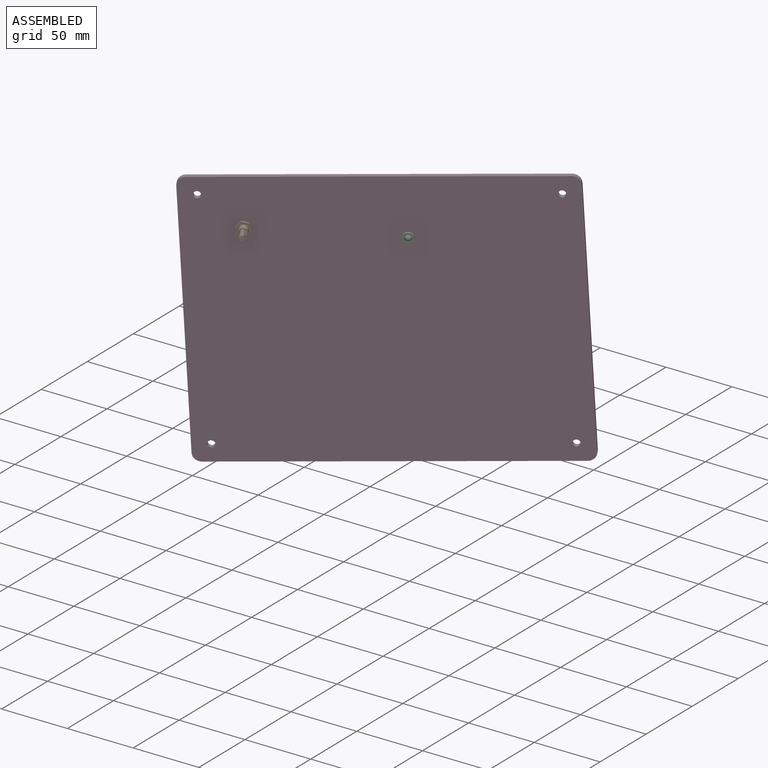
[diagram: assembled view]
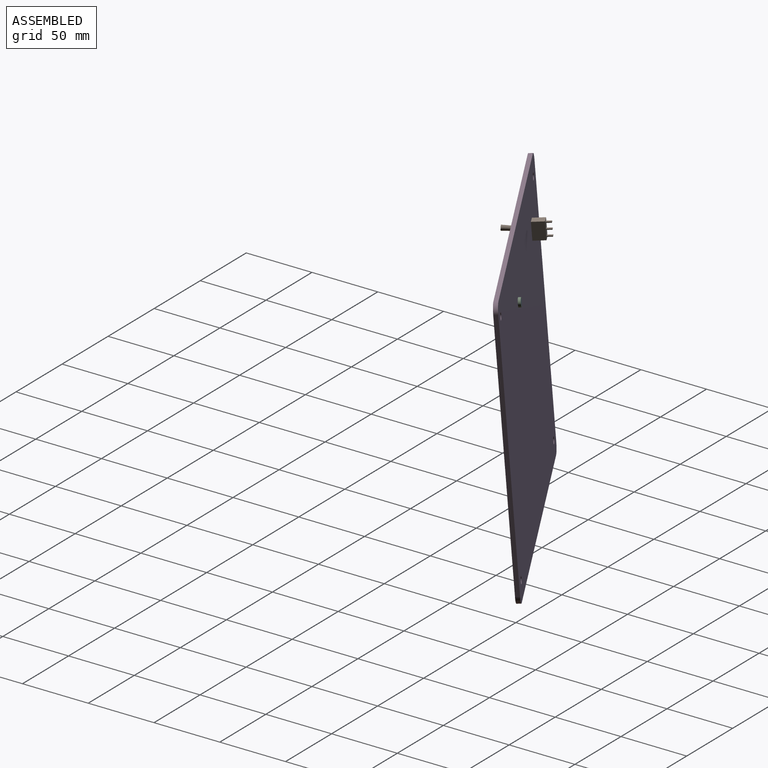
[diagram: assembled view, second angle]
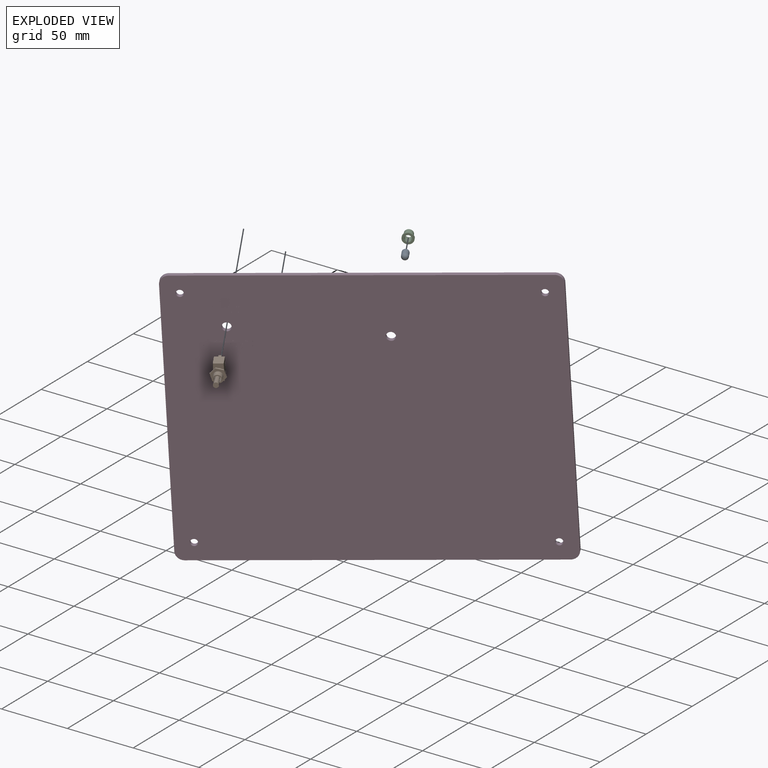
[diagram: exploded view]
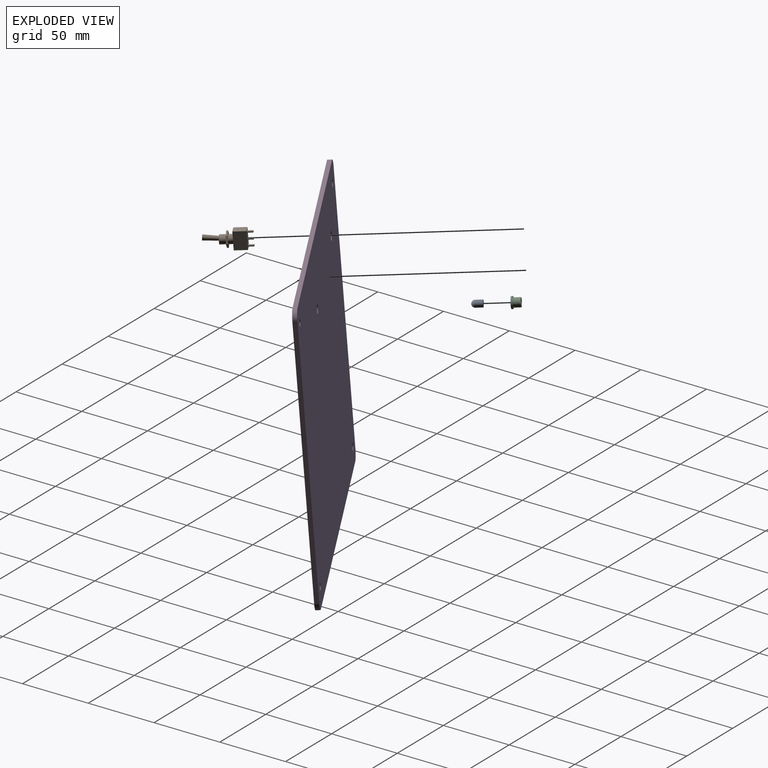
[diagram: exploded view, second angle]
ASSEMBLY  parts=4 mates=3
PART A: 3 faces, bbox 5x5x7.6 mm
  f0: sphere r=2.5mm, area 39.3mm2, adj f1
  f1: cylinder r=2.5mm len=5.08mm, axis (0,0,1), area 79.8mm2, adj f0,f2
  f2: plane 5x5mm, normal (0,0,-1), area 19.6mm2, adj f1
PART B: 37 faces, bbox 12.7x10.7x32.5 mm
  f0: cylinder r=3.17mm len=6.35mm, axis (0,0,-1), area 63.3mm2, adj f2,f29
  f1: plane 12.7x6.86mm, normal (0,0,-1), area 82.5mm2, adj f3,f4,f5,f6,f7,f8,f9,f10
  f2: plane 12.7x6.86mm, normal (0,0,1), area 55.4mm2, adj f0,f3,f4,f5,f6
  f3: plane 12.7x8.89mm, normal (0,1,0), area 112.9mm2, adj f1,f2,f4,f6
  f4: plane 8.89x6.86mm, normal (-1,0,0), area 61mm2, adj f1,f2,f3,f5
  f5: plane 12.7x8.89mm, normal (0,-1,0), area 112.9mm2, adj f1,f2,f4,f6
  f6: plane 8.89x6.86mm, normal (1,0,0), area 61mm2, adj f1,f2,f3,f5
  f7: plane 3.94x0.76mm, normal (0,1,0), area 3mm2, adj f1,f8,f10,f11
  f8: plane 3.94x2.03mm, normal (1,0,0), area 8mm2, adj f1,f7,f9,f11
  f9: plane 3.94x0.76mm, normal (0,-1,0), area 3mm2, adj f1,f8,f10,f11
  f10: plane 3.94x2.03mm, normal (-1,0,0), area 8mm2, adj f1,f7,f9,f11
  f11: plane 2.03x0.76mm, normal (0,0,-1), area 1.5mm2, adj f7,f8,f9,f10
  f12: plane 3.94x2.03mm, normal (1,0,0), area 8mm2, adj f1,f13,f15,f16
  f13: plane 3.94x0.76mm, normal (0,-1,0), area 3mm2, adj f1,f12,f14,f16
  f14: plane 3.94x2.03mm, normal (-1,0,0), area 8mm2, adj f1,f13,f15,f16
  f15: plane 3.94x0.76mm, normal (0,1,0), area 3mm2, adj f1,f12,f14,f16
  f16: plane 2.03x0.76mm, normal (0,0,-1), area 1.5mm2, adj f12,f13,f14,f15
  f17: plane 3.94x2.03mm, normal (1,0,0), area 8mm2, adj f1,f18,f20,f21
  f18: plane 3.94x0.76mm, normal (0,-1,0), area 3mm2, adj f1,f17,f19,f21
  f19: plane 3.94x2.03mm, normal (-1,0,0), area 8mm2, adj f1,f18,f20,f21
  f20: plane 3.94x0.76mm, normal (0,1,0), area 3mm2, adj f1,f17,f19,f21
  f21: plane 2.03x0.76mm, normal (0,0,-1), area 1.5mm2, adj f17,f18,f19,f20
  f22: plane 5.3x1.48mm, normal (0.27,-0.96,0), area 6.4mm2, adj f23,f27,f28,f29
  f23: plane 5.33x1.37mm, normal (0.97,-0.25,0), area 6.4mm2, adj f22,f24,f28,f29
  f24: plane 3.93x3.85mm, normal (0.7,0.71,0), area 6.4mm2, adj f23,f25,f28,f29
  f25: plane 5.3x1.48mm, normal (-0.27,0.96,0), area 6.4mm2, adj f24,f26,f28,f29
  f26: plane 5.33x1.37mm, normal (-0.97,0.25,0), area 6.4mm2, adj f25,f27,f28,f29
  f27: plane 3.93x3.85mm, normal (-0.7,-0.71,0), area 6.4mm2, adj f22,f26,f28,f29
  f28: plane 10.65x10.59mm, normal (0,0,1), area 46.9mm2, adj f22,f23,f24,f25,f26,f27,f33
  f29: plane 10.65x10.59mm, normal (0,0,-1), area 46.9mm2, adj f0,f22,f23,f24,f25,f26,f27
  f30: plane 4.74x4.74mm, normal (0,0,1), area 15.2mm2, adj f31,f34,f35
  f31: cylinder r=2.37mm len=8.89mm, axis (0,0,-1), area 132.3mm2, adj f30,f32
  f32: plane 6.35x6.35mm, normal (0,0,1), area 14.1mm2, adj f31,f33
  f33: cylinder r=3.17mm len=6.35mm, axis (0,0,-1), area 90.7mm2, adj f28,f32
  f34: cone r=1.22mm half-angle=2deg, axis (0.09,0,1), area 192.3mm2, adj f30,f35,f36
  f35: plane 2.45x1.22mm, normal (-0.09,0,-1), area 2.4mm2, adj f30,f34
  f36: plane 3.81x3.8mm, normal (0.09,0,1), area 11.4mm2, adj f34
PART C: 6 faces, bbox 8.2x8.2x6.4 mm
  f0: cylinder r=2.5mm len=6.35mm, axis (0,0,-1), area 99.7mm2, adj f2,f5
  f1: cylinder r=4.11mm len=8.22mm, axis (0,0,-1), area 32.8mm2, adj f2,f3
  f2: plane 8.22x8.22mm, normal (0,0,1), area 33.4mm2, adj f0,f1
  f3: plane 8.22x8.22mm, normal (0,0,-1), area 20.6mm2, adj f1,f4
  f4: cylinder r=3.21mm len=6.43mm, axis (0,0,1), area 102.6mm2, adj f3,f5
  f5: plane 6.43x6.43mm, normal (0,0,-1), area 12.8mm2, adj f0,f4
PART D: 202 faces, bbox 254x3.2x203.2 mm
  f0: plane 254x203.2mm, normal (0,-1,0), area 51273.5mm2, adj f1,f2,f3,f4,f5,f6,f7,f8
  f1: plane 241.3x3.18mm, normal (0,0,-1), area 766.1mm2, adj f0,f9,f10,f13
  f2: plane 190.5x3.18mm, normal (1,0,0), area 604.8mm2, adj f0,f9,f10,f11
  f3: plane 241.3x3.18mm, normal (0,0,1), area 766.1mm2, adj f0,f9,f11,f12
  f4: cylinder r=2.54mm len=5.08mm, axis (0,1,0), area 50.7mm2, adj f0,f9
  f5: cylinder r=2.54mm len=5.08mm, axis (0,1,0), area 50.7mm2, adj f0,f9
  f6: cylinder r=2.54mm len=5.08mm, axis (0,1,0), area 50.7mm2, adj f0,f9
  f7: cylinder r=2.54mm len=5.08mm, axis (0,1,0), area 50.7mm2, adj f0,f9
  f8: plane 190.5x3.18mm, normal (-1,0,0), area 604.8mm2, adj f0,f9,f12,f13
  f9: plane 254x203.2mm, normal (0,1,0), area 51433.8mm2, adj f1,f2,f3,f4,f5,f6,f7,f8
  f10: cylinder r=6.35mm len=6.35mm, axis (0,1,0), area 31.7mm2, adj f0,f1,f2,f9
  f11: cylinder r=6.35mm len=6.35mm, axis (0,-1,0), area 31.7mm2, adj f0,f2,f3,f9
  f12: cylinder r=6.35mm len=6.35mm, axis (0,1,0), area 31.7mm2, adj f0,f3,f8,f9
  f13: cylinder r=6.35mm len=6.35mm, axis (0,-1,0), area 31.7mm2, adj f0,f1,f8,f9
  f14: cylinder r=3.17mm len=6.35mm, axis (0,-1,0), area 63.3mm2, adj f0,f9
  f15: cylinder r=3.17mm len=6.35mm, axis (0,-1,0), area 63.3mm2, adj f0,f9
  f16: plane 1.44x0.03mm, normal (0,0,-1), area 0mm2, adj f0,f17,f27,f28
  f17: plane 6.32x2.23mm, normal (0.94,0,0.33), area 0.2mm2, adj f0,f16,f18,f28
  f18: plane 1.63x0.03mm, normal (0,0,1), area 0mm2, adj f0,f17,f19,f28
  f19: plane 6.32x2.22mm, normal (-0.94,0,0.33), area 0.2mm2, adj f0,f18,f20,f28
  f20: plane 1.44x0.03mm, normal (0,0,-1), area 0mm2, adj f0,f19,f21,f28
  f21: plane 1.5x0.46mm, normal (0.96,0,-0.29), area 0mm2, adj f0,f20,f22,f28
  f22: plane 2.3x0.03mm, normal (0,0,-1), area 0.1mm2, adj f0,f21,f27,f28
  f23: plane 1.64x0.03mm, normal (0,0,1), area 0mm2, adj f24,f26,f28,f29
  f24: extruded ~2.73x0.81mm, area 0.1mm2, adj f23,f25,f28,f29
  f25: extruded ~0.42x0.11mm, area 0mm2, adj f24,f26,f28,f29
  f26: extruded ~2.3x0.71mm, area 0.1mm2, adj f23,f25,f28,f29
  f27: plane 1.5x0.46mm, normal (-0.96,0,-0.29), area 0mm2, adj f0,f16,f22,f28
  f28: plane 6.32x6.09mm, normal (0,-1,0), area 18.1mm2, adj f16,f17,f18,f19,f20,f21,f22,f23
  f29: plane 2.73x1.64mm, normal (0,-1,0), area 2.2mm2, adj f23,f24,f25,f26
  f30: plane 1.01x0.03mm, normal (0,0,-1), area 0mm2, adj f0,f31,f46,f47
  f31: plane 4.82x0.03mm, normal (1,0,0), area 0.1mm2, adj f0,f30,f32,f47
  f32: plane 1.31x0.03mm, normal (0,0,1), area 0mm2, adj f0,f31,f33,f47
  f33: plane 2.27x0.03mm, normal (-1,0,0), area 0.1mm2, adj f0,f32,f34,f47
  f34: extruded ~1.22x0.25mm, area 0mm2, adj f0,f33,f35,f47
  f35: extruded ~0.8x0.37mm, area 0mm2, adj f0,f34,f36,f47
  f36: extruded ~0.59x0.26mm, area 0mm2, adj f0,f35,f37,f47
  f37: extruded ~0.78x0.19mm, area 0mm2, adj f0,f36,f38,f47
  f38: plane 2.81x0.03mm, normal (1,0,0), area 0.1mm2, adj f0,f37,f39,f47
  f39: plane 1.31x0.03mm, normal (0,0,1), area 0mm2, adj f0,f38,f40,f47
  f40: plane 3.14x0.03mm, normal (-1,0,0), area 0.1mm2, adj f0,f39,f41,f47
  f41: extruded ~1.31x0.43mm, area 0mm2, adj f0,f40,f42,f47
  f42: extruded ~1.28x0.45mm, area 0mm2, adj f0,f41,f43,f47
  f43: extruded ~0.88x0.18mm, area 0mm2, adj f0,f42,f44,f47
  f44: extruded ~0.6x0.52mm, area 0mm2, adj f0,f43,f45,f47
  f45: plane 0.07x0.03mm, normal (0,0,-1), area 0mm2, adj f0,f44,f46,f47
  f46: plane 0.62x0.18mm, normal (-0.96,0,-0.28), area 0mm2, adj f0,f30,f45,f47
  f47: plane 4.9x4.44mm, normal (0,-1,0), area 14.1mm2, adj f30,f31,f32,f33,f34,f35,f36,f37
  f48: extruded ~0.42x0.13mm, area 0mm2, adj f0,f49,f65,f66
  f49: extruded ~0.41x0.16mm, area 0mm2, adj f0,f48,f50,f66
  f50: plane 2.32x0.03mm, normal (1,0,0), area 0.1mm2, adj f0,f49,f51,f66
  f51: plane 1.35x0.03mm, normal (0,0,-1), area 0mm2, adj f0,f50,f52,f66
  f52: plane 0.99x0.03mm, normal (1,0,0), area 0mm2, adj f0,f51,f53,f66
  f53: plane 1.35x0.03mm, normal (0,0,1), area 0mm2, adj f0,f52,f54,f66
  f54: plane 1.03x0.03mm, normal (1,0,0), area 0mm2, adj f0,f53,f55,f66
  f55: plane 0.84x0.03mm, normal (0,0,1), area 0mm2, adj f0,f54,f56,f66
  f56: plane 1.02x0.38mm, normal (-0.94,0,0.35), area 0mm2, adj f0,f55,f57,f66
  f57: plane 0.72x0.44mm, normal (-0.52,0,0.85), area 0mm2, adj f0,f56,f58,f66
  f58: plane 0.56x0.03mm, normal (-1,0,0), area 0mm2, adj f0,f57,f59,f66
  f59: plane 0.63x0.03mm, normal (0,0,-1), area 0mm2, adj f0,f58,f60,f66
  f60: plane 2.32x0.03mm, normal (-1,0,0), area 0.1mm2, adj f0,f59,f61,f66
  f61: extruded ~1.2x0.36mm, area 0mm2, adj f0,f60,f62,f66
  f62: extruded ~1.15x0.4mm, area 0mm2, adj f0,f61,f63,f66
  f63: extruded ~1.21x0.22mm, area 0mm2, adj f0,f62,f64,f66
  f64: plane 0.98x0.03mm, normal (1,0,0), area 0mm2, adj f0,f63,f65,f66
  f65: extruded ~0.83x0.15mm, area 0mm2, adj f0,f48,f64,f66
  f66: plane 5.93x3.34mm, normal (0,-1,0), area 10.4mm2, adj f48,f49,f50,f51,f52,f53,f54,f55
  f67: extruded ~1.08x0.23mm, area 0mm2, adj f68,f84,f85,f86
  f68: extruded ~0.76x0.36mm, area 0mm2, adj f67,f69,f85,f86
  f69: extruded ~0.76x0.36mm, area 0mm2, adj f68,f70,f85,f86
  f70: extruded ~1.07x0.23mm, area 0mm2, adj f69,f71,f85,f86
  f71: extruded ~1.08x0.23mm, area 0mm2, adj f70,f72,f85,f86
  f72: extruded ~0.76x0.36mm, area 0mm2, adj f71,f73,f85,f86
  f73: extruded ~0.76x0.37mm, area 0mm2, adj f72,f84,f85,f86
  f74: extruded ~1.32x0.28mm, area 0mm2, adj f0,f75,f83,f85
  f75: extruded ~0.87x0.81mm, area 0mm2, adj f0,f74,f76,f85
  f76: extruded ~1.22x0.3mm, area 0mm2, adj f0,f75,f77,f85
  f77: extruded ~1.73x0.65mm, area 0mm2, adj f0,f76,f78,f85
  f78: extruded ~1.83x0.62mm, area 0.1mm2, adj f0,f77,f79,f85
  f79: extruded ~1.33x0.28mm, area 0mm2, adj f0,f78,f80,f85
  f80: extruded ~0.87x0.81mm, area 0mm2, adj f0,f79,f81,f85
  f81: extruded ~1.22x0.3mm, area 0mm2, adj f0,f80,f82,f85
  f82: extruded ~1.73x0.66mm, area 0mm2, adj f0,f81,f83,f85
  f83: extruded ~1.84x0.62mm, area 0.1mm2, adj f0,f74,f82,f85
  f84: extruded ~1.08x0.24mm, area 0mm2, adj f67,f73,f85,f86
  f85: plane 4.99x4.67mm, normal (0,-1,0), area 14.2mm2, adj f67,f68,f69,f70,f71,f72,f73,f74
  f86: plane 2.88x1.99mm, normal (0,-1,0), area 4.8mm2, adj f67,f68,f69,f70,f71,f72,f73,f84
  f87: plane 1.22x0.03mm, normal (0,0,-1), area 0mm2, adj f0,f88,f105,f106
  f88: plane 4.93x1.62mm, normal (0.95,0,-0.31), area 0.1mm2, adj f0,f87,f89,f106
  f89: plane 0.04x0.03mm, normal (0,0,-1), area 0mm2, adj f0,f88,f90,f106
  f90: extruded ~1.46x0.06mm, area 0mm2, adj f0,f89,f91,f106
  f91: extruded ~0.49x0.03mm, area 0mm2, adj f0,f90,f92,f106
  f92: plane 2.98x0.03mm, normal (-1,0,0), area 0.1mm2, adj f0,f91,f93,f106
  f93: plane 1.24x0.03mm, normal (0,0,-1), area 0mm2, adj f0,f92,f94,f106
  f94: plane 6.3x0.03mm, normal (1,0,0), area 0.2mm2, adj f0,f93,f95,f106
  f95: plane 1.82x0.03mm, normal (0,0,1), area 0mm2, adj f0,f94,f96,f106
  f96: plane 4.82x1.58mm, normal (-0.95,0,0.31), area 0.1mm2, adj f0,f95,f97,f106
  f97: plane 0.03x0.03mm, normal (0,0,1), area 0mm2, adj f0,f96,f98,f106
  f98: plane 4.82x1.49mm, normal (0.96,0,0.3), area 0.1mm2, adj f0,f97,f99,f106
  f99: plane 1.82x0.03mm, normal (0,0,1), area 0mm2, adj f0,f98,f100,f106
  f100: plane 6.3x0.03mm, normal (-1,0,0), area 0.2mm2, adj f0,f99,f101,f106
  f101: plane 1.19x0.03mm, normal (0,0,-1), area 0mm2, adj f0,f100,f102,f106
  f102: plane 2.93x0.03mm, normal (1,0,0), area 0.1mm2, adj f0,f101,f103,f106
  f103: extruded ~2.01x0.08mm, area 0.1mm2, adj f0,f102,f104,f106
  f104: plane 0.04x0.03mm, normal (0,0,-1), area 0mm2, adj f0,f103,f105,f106
  f105: plane 4.94x1.52mm, normal (-0.96,0,-0.29), area 0.1mm2, adj f0,f87,f104,f106
  f106: plane 6.73x6.3mm, normal (0,-1,0), area 27.3mm2, adj f87,f88,f89,f90,f91,f92,f93,f94
  f107: plane 0.92x0.03mm, normal (0,0,-1), area 0mm2, adj f0,f108,f131,f132
  f108: plane 3.21x0.03mm, normal (1,0,0), area 0.1mm2, adj f0,f107,f109,f132
  f109: extruded ~1.28x0.52mm, area 0mm2, adj f0,f108,f110,f132
  f110: extruded ~1.49x0.42mm, area 0mm2, adj f0,f109,f111,f132
  f111: extruded ~1.84x0.44mm, area 0mm2, adj f0,f110,f112,f132
  f112: plane 0.89x0.43mm, normal (-0.9,0,-0.44), area 0mm2, adj f0,f111,f113,f132
  f113: extruded ~1.36x0.35mm, area 0mm2, adj f0,f112,f114,f132
  f114: extruded ~0.75x0.73mm, area 0mm2, adj f0,f113,f115,f132
  f115: plane 0.21x0.03mm, normal (-1,0,0), area 0mm2, adj f0,f114,f116,f132
  f116: plane 0.84x0.03mm, normal (-0.03,0,1), area 0mm2, adj f0,f115,f117,f132
  f117: extruded ~1.62x0.4mm, area 0mm2, adj f0,f116,f118,f132
  f118: extruded ~1.13x0.54mm, area 0mm2, adj f0,f117,f119,f132
  f119: extruded ~1.13x0.4mm, area 0mm2, adj f0,f118,f120,f132
  f120: extruded ~1.09x0.4mm, area 0mm2, adj f0,f119,f121,f132
  f121: extruded ~0.92x0.16mm, area 0mm2, adj f0,f120,f122,f132
  f122: extruded ~0.68x0.58mm, area 0mm2, adj f0,f121,f123,f132
  f123: plane 0.03x0.03mm, normal (0,0,-1), area 0mm2, adj f0,f122,f131,f132
  f124: plane 0.4x0.03mm, normal (-1,0,0), area 0mm2, adj f125,f130,f132,f133
  f125: extruded ~0.7x0.27mm, area 0mm2, adj f124,f126,f132,f133
  f126: extruded ~0.73x0.26mm, area 0mm2, adj f125,f127,f132,f133
  f127: extruded ~0.64x0.56mm, area 0mm2, adj f126,f128,f132,f133
  f128: extruded ~0.58x0.28mm, area 0mm2, adj f127,f129,f132,f133
  f129: extruded ~0.85x0.21mm, area 0mm2, adj f128,f130,f132,f133
  f130: plane 0.51x0.03mm, normal (0.04,0,-1), area 0mm2, adj f124,f129,f132,f133
  f131: plane 0.65x0.26mm, normal (-0.93,0,-0.36), area 0mm2, adj f0,f107,f123,f132
  f132: plane 5x4.29mm, normal (0,-1,0), area 14.2mm2, adj f107,f108,f109,f110,f111,f112,f113,f114
  f133: plane 1.64x1.36mm, normal (0,-1,0), area 1.8mm2, adj f124,f125,f126,f127,f128,f129,f130
  f134: plane 3.14x0.03mm, normal (1,0,0), area 0.1mm2, adj f0,f135,f150,f151
  f135: extruded ~1.31x0.43mm, area 0mm2, adj f0,f134,f136,f151
  f136: extruded ~1.28x0.45mm, area 0mm2, adj f0,f135,f137,f151
  f137: extruded ~0.88x0.18mm, area 0mm2, adj f0,f136,f138,f151
  f138: extruded ~0.61x0.53mm, area 0mm2, adj f0,f137,f139,f151
  f139: plane 0.07x0.03mm, normal (0,0,1), area 0mm2, adj f0,f138,f140,f151
  f140: plane 0.62x0.18mm, normal (0.96,0,0.28), area 0mm2, adj f0,f139,f141,f151
  f141: plane 1x0.03mm, normal (0,0,1), area 0mm2, adj f0,f140,f142,f151
  f142: plane 4.82x0.03mm, normal (-1,0,0), area 0.1mm2, adj f0,f141,f143,f151
  f143: plane 1.31x0.03mm, normal (0,0,-1), area 0mm2, adj f0,f142,f144,f151
  f144: plane 2.27x0.03mm, normal (1,0,0), area 0.1mm2, adj f0,f143,f145,f151
  f145: extruded ~1.22x0.25mm, area 0mm2, adj f0,f144,f146,f151
  f146: extruded ~0.8x0.37mm, area 0mm2, adj f0,f145,f147,f151
  f147: extruded ~0.59x0.26mm, area 0mm2, adj f0,f146,f148,f151
  f148: extruded ~0.78x0.19mm, area 0mm2, adj f0,f147,f149,f151
  f149: plane 2.81x0.03mm, normal (-1,0,0), area 0.1mm2, adj f0,f148,f150,f151
  f150: plane 1.31x0.03mm, normal (0,0,-1), area 0mm2, adj f0,f134,f149,f151
  f151: plane 4.9x4.44mm, normal (0,-1,0), area 14.2mm2, adj f134,f135,f136,f137,f138,f139,f140,f141
  f152: plane 1.01x0.03mm, normal (0,0,-1), area 0mm2, adj f0,f153,f168,f169
  f153: plane 4.82x0.03mm, normal (1,0,0), area 0.1mm2, adj f0,f152,f154,f169
  f154: plane 1.31x0.03mm, normal (0,0,1), area 0mm2, adj f0,f153,f155,f169
  f155: plane 2.27x0.03mm, normal (-1,0,0), area 0.1mm2, adj f0,f154,f156,f169
  f156: extruded ~1.22x0.25mm, area 0mm2, adj f0,f155,f157,f169
  f157: extruded ~0.8x0.37mm, area 0mm2, adj f0,f156,f158,f169
  f158: extruded ~0.59x0.26mm, area 0mm2, adj f0,f157,f159,f169
  f159: extruded ~0.78x0.19mm, area 0mm2, adj f0,f158,f160,f169
  f160: plane 2.81x0.03mm, normal (1,0,0), area 0.1mm2, adj f0,f159,f161,f169
  f161: plane 1.31x0.03mm, normal (0,0,1), area 0mm2, adj f0,f160,f162,f169
  f162: plane 3.14x0.03mm, normal (-1,0,0), area 0.1mm2, adj f0,f161,f163,f169
  f163: extruded ~1.31x0.43mm, area 0mm2, adj f0,f162,f164,f169
  f164: extruded ~1.28x0.45mm, area 0mm2, adj f0,f163,f165,f169
  f165: extruded ~0.88x0.18mm, area 0mm2, adj f0,f164,f166,f169
  f166: extruded ~0.6x0.52mm, area 0mm2, adj f0,f165,f167,f169
  f167: plane 0.07x0.03mm, normal (0,0,-1), area 0mm2, adj f0,f166,f168,f169
  f168: plane 0.62x0.18mm, normal (-0.96,0,-0.28), area 0mm2, adj f0,f152,f167,f169
  f169: plane 4.9x4.44mm, normal (0,-1,0), area 14.1mm2, adj f152,f153,f154,f155,f156,f157,f158,f159
  f170: plane 0.92x0.03mm, normal (0,0,-1), area 0mm2, adj f0,f171,f194,f195
  f171: plane 3.21x0.03mm, normal (1,0,0), area 0.1mm2, adj f0,f170,f172,f195
  f172: extruded ~1.28x0.52mm, area 0mm2, adj f0,f171,f173,f195
  f173: extruded ~1.49x0.42mm, area 0mm2, adj f0,f172,f174,f195
  f174: extruded ~1.84x0.44mm, area 0mm2, adj f0,f173,f175,f195
  f175: plane 0.89x0.43mm, normal (-0.9,0,-0.44), area 0mm2, adj f0,f174,f176,f195
  f176: extruded ~1.36x0.35mm, area 0mm2, adj f0,f175,f177,f195
  f177: extruded ~0.75x0.73mm, area 0mm2, adj f0,f176,f178,f195
  f178: plane 0.21x0.03mm, normal (-1,0,0), area 0mm2, adj f0,f177,f179,f195
  f179: plane 0.84x0.03mm, normal (-0.03,0,1), area 0mm2, adj f0,f178,f180,f195
  f180: extruded ~1.62x0.4mm, area 0mm2, adj f0,f179,f181,f195
  f181: extruded ~1.13x0.54mm, area 0mm2, adj f0,f180,f182,f195
  f182: extruded ~1.13x0.4mm, area 0mm2, adj f0,f181,f183,f195
  f183: extruded ~1.09x0.4mm, area 0mm2, adj f0,f182,f184,f195
  f184: extruded ~0.92x0.16mm, area 0mm2, adj f0,f183,f185,f195
  f185: extruded ~0.68x0.58mm, area 0mm2, adj f0,f184,f186,f195
  f186: plane 0.03x0.03mm, normal (0,0,-1), area 0mm2, adj f0,f185,f194,f195
  f187: plane 0.4x0.03mm, normal (-1,0,0), area 0mm2, adj f188,f193,f195,f196
  f188: extruded ~0.7x0.27mm, area 0mm2, adj f187,f189,f195,f196
  f189: extruded ~0.73x0.26mm, area 0mm2, adj f188,f190,f195,f196
  f190: extruded ~0.64x0.56mm, area 0mm2, adj f189,f191,f195,f196
  f191: extruded ~0.58x0.28mm, area 0mm2, adj f190,f192,f195,f196
  f192: extruded ~0.85x0.21mm, area 0mm2, adj f191,f193,f195,f196
  f193: plane 0.51x0.03mm, normal (0.04,0,-1), area 0mm2, adj f187,f192,f195,f196
  f194: plane 0.65x0.26mm, normal (-0.93,0,-0.36), area 0mm2, adj f0,f170,f186,f195
  f195: plane 5x4.29mm, normal (0,-1,0), area 14.2mm2, adj f170,f171,f172,f173,f174,f175,f176,f177
  f196: plane 1.64x1.36mm, normal (0,-1,0), area 1.8mm2, adj f187,f188,f189,f190,f191,f192,f193
  f197: plane 6.7x0.03mm, normal (1,0,0), area 0.2mm2, adj f0,f198,f200,f201
  f198: plane 1.31x0.03mm, normal (0,0,1), area 0mm2, adj f0,f197,f199,f201
  f199: plane 6.7x0.03mm, normal (-1,0,0), area 0.2mm2, adj f0,f198,f200,f201
  f200: plane 1.31x0.03mm, normal (0,0,-1), area 0mm2, adj f0,f197,f199,f201
  f201: plane 6.7x1.31mm, normal (0,-1,0), area 8.8mm2, adj f197,f198,f199,f200
PLACE A rot(axis=(0.94,0.23,0.25),98.5deg) t=(77.27,53.36,70.91)mm
PLACE B rot(axis=(0.66,-0.4,0.63),141.9deg) t=(-10.55,0.04,73.3)mm
PLACE C rot(axis=(0.94,0.23,0.25),98.5deg) t=(79.81,48.97,70.53)mm
PLACE D rot(axis=(0.16,-0.04,0.99),30.4deg) t=(64.09,48.63,12.35)mm
MATE fastened B.f0 <-> D.f15  axis (-0.5,0.86,0.08) through (-8.96,-2.7,73.06)mm
MATE fastened C.f0 <-> A.f1  axis (-0.5,0.86,0.08) through (77.27,53.36,70.91)mm
MATE fastened C.f0 <-> D.f14  axis (0.5,-0.86,-0.08) through (79.81,48.97,70.53)mm
